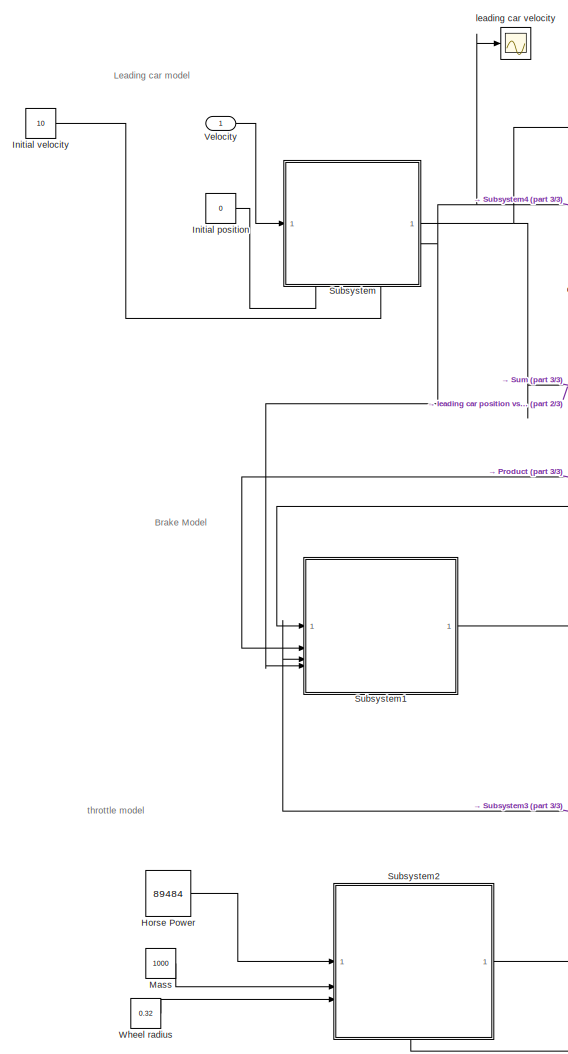
[diagram: root canvas - part 1/3, left side, full height]
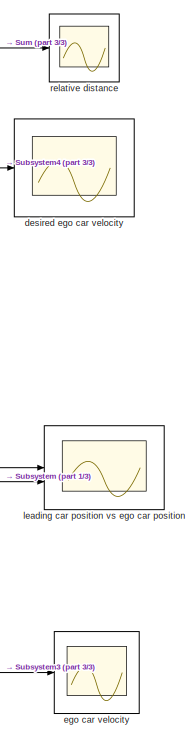
[diagram: root canvas - part 2/3, middle right region]
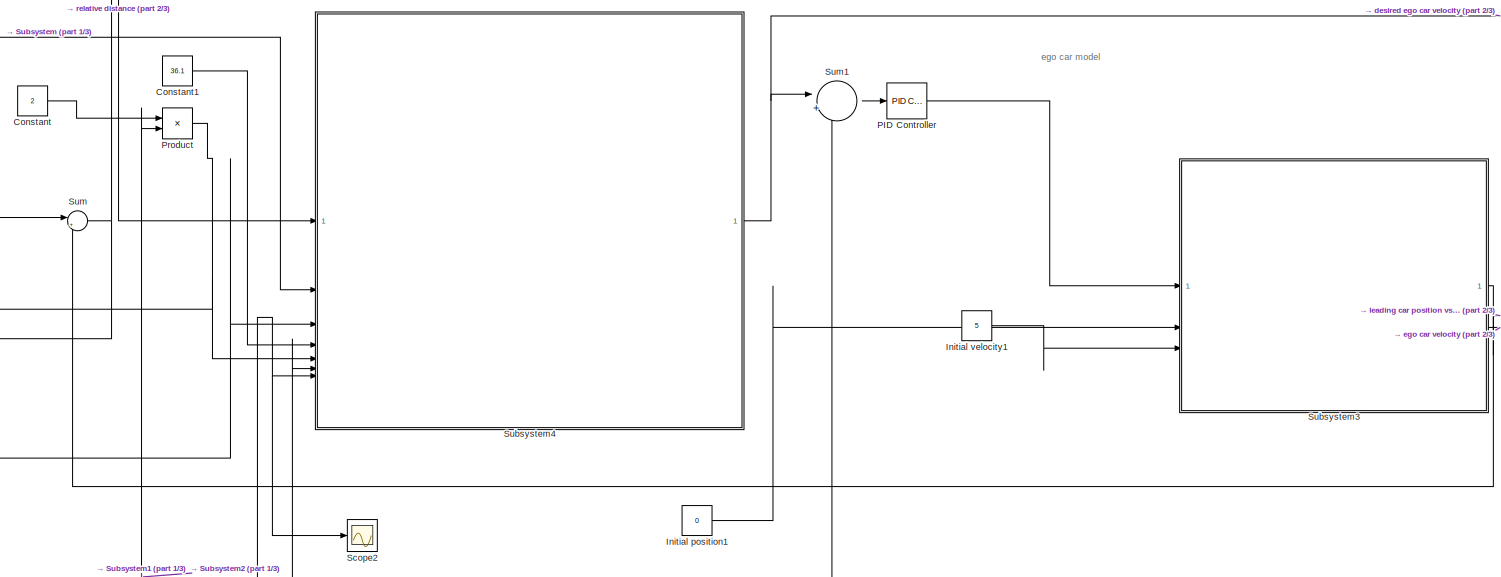
[diagram: root canvas - part 3/3, central region]
MODEL slx_e162d9dc0a43
KIND model
CONFIG AbsTol = auto
CONFIG EnableMultiTasking = off
CONFIG FixedStep = auto
CONFIG MaxStep = auto
CONFIG MinStep = auto
CONFIG RelTol = 1e-3
CONFIG SampleTimeConstraint = Unconstrained
CONFIG SolverName = VariableStepAuto
CONFIG StartTime = 0.0
CONFIG StopTime = 10.0
BLOCK [Constant] Constant
  Value = 2
BLOCK [Constant] Constant1
  Value = 36.1
BLOCK [Constant] Horse Power
  Value = 89484
BLOCK [Constant] Initial position
  Value = 0
BLOCK [Constant] Initial position1
  Value = 0
BLOCK [Constant] Initial velocity
  Value = 10
BLOCK [Constant] Initial velocity1
  Value = 5
BLOCK [Constant] Mass
  Value = 1000
BLOCK [Reference] PID Controller  REF=slpidlib/PID Controller
  LibrarySourceBlock = simulink/Continuous/PID Controller
  SourceBlock = slpidlib/PID Controller
  SourceType = PID 1dof
BLOCK [Product] Product
BLOCK [Scope] Scope2
  Floating = off
  NumInputPorts = 1
  ScopeSpecificationString = Simulink.scopes.TimeScopeBlockCfg('CurrentConfiguration', extmgr.ConfigurationSet(extmgr.Configuration('Core','General UI',true),extmgr.Configuration('Core','Source UI',true),extmgr.Configuration('Sources','WiredSimulink',true,'DataLoggingVariableName','ScopeData3'),extmgr.Configuration('Visuals','Time Domain',true,'SerializedDisplays',{struct('MinYLimReal','4.99639','MaxYLimReal','5.0023','YLabel...<+1454ch>
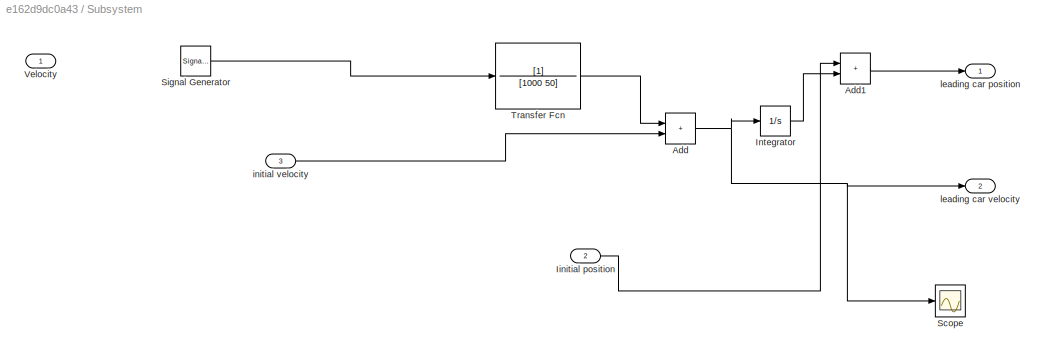
BLOCK [SubSystem] Subsystem
  PortSchema = {"entries":[{"content":{"sides":[{"content":{"connectorIds":["In1"]},"type":"ConnectorPlacement.EquallySpacedRectSide","uuid":"88e62f58-abb7-424e-bece-cb0affe26b20"},{"content":{"connectorIds":["Out1","Out2"],"side":"RIGHT"},"type":"ConnectorPlacement.EquallySpacedRectSide","uuid":"86853464-5600-4523-8146-b34d4afbe922"},{"content":{"side":"TOP"},"type":"ConnectorPlacement.EquallySpacedRectSide","u...<+384ch>
BLOCK [Sum] Subsystem/Add
  IconShape = rectangular
BLOCK [Sum] Subsystem/Add1
  IconShape = rectangular
BLOCK [Inport] Subsystem/Iinitial position
  Port = 2
BLOCK [Integrator] Subsystem/Integrator
BLOCK [Scope] Subsystem/Scope
  Floating = off
  NumInputPorts = 1
  ScopeSpecificationString = Simulink.scopes.TimeScopeBlockCfg('CurrentConfiguration', extmgr.ConfigurationSet(extmgr.Configuration('Core','General UI',true),extmgr.Configuration('Core','Source UI',true),extmgr.Configuration('Sources','WiredSimulink',true,'DataLoggingVariableName','ScopeData1'),extmgr.Configuration('Visuals','Time Domain',true,'SerializedDisplays',{struct('MinYLimReal','7.99947','MaxYLimReal','8.00212','YLabe...<+1449ch>
BLOCK [SignalGenerator] Subsystem/Signal Generator
  Units = rad/sec
BLOCK [TransferFcn] Subsystem/Transfer Fcn
  Denominator = [1000 50]
BLOCK [Inport] Subsystem/Velocity
BLOCK [Inport] Subsystem/initial velocity
  Port = 3
BLOCK [Outport] Subsystem/leading car position
BLOCK [Outport] Subsystem/leading car velocity
  Port = 2
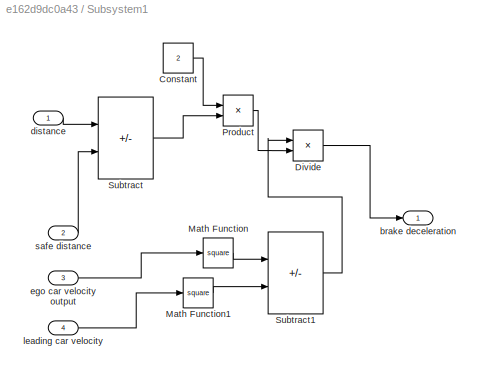
BLOCK [SubSystem] Subsystem1
BLOCK [Constant] Subsystem1/Constant
  Value = 2
BLOCK [Product] Subsystem1/Divide
  Inputs = */
BLOCK [Math] Subsystem1/Math Function
  Operator = square
BLOCK [Math] Subsystem1/Math Function1
  Operator = square
BLOCK [Product] Subsystem1/Product
BLOCK [Sum] Subsystem1/Subtract
  IconShape = rectangular
  Inputs = +-
BLOCK [Sum] Subsystem1/Subtract1
  IconShape = rectangular
  Inputs = +-
BLOCK [Outport] Subsystem1/brake deceleration
BLOCK [Inport] Subsystem1/distance
BLOCK [Inport] Subsystem1/ego car velocity output
  Port = 3
BLOCK [Inport] Subsystem1/leading car velocity
  Port = 4
BLOCK [Inport] Subsystem1/safe distance
  Port = 2
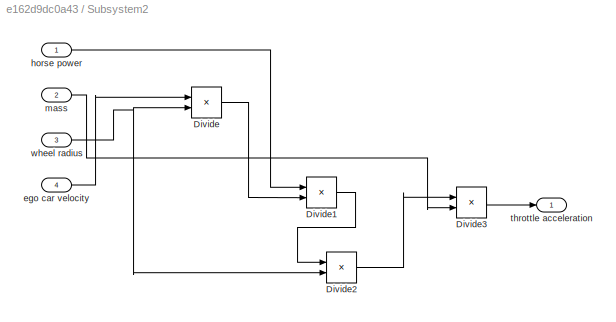
BLOCK [SubSystem] Subsystem2
  PortSchema = {"entries":[{"content":{"sides":[{"content":{"connectorIds":["In1","In2","In3"]},"type":"ConnectorPlacement.EquallySpacedRectSide","uuid":"6f7fc6ef-cf55-43d9-98d6-98847b3edffa"},{"content":{"connectorIds":["Out1"],"side":"RIGHT"},"type":"ConnectorPlacement.EquallySpacedRectSide","uuid":"51f9bcc9-e8b5-40a1-8c1e-180b9cd97441"},{"content":{"side":"TOP"},"type":"ConnectorPlacement.EquallySpacedRectSid...<+383ch>
BLOCK [Product] Subsystem2/Divide
  Inputs = //
BLOCK [Product] Subsystem2/Divide1
  Inputs = //
BLOCK [Product] Subsystem2/Divide2
  Inputs = //
BLOCK [Product] Subsystem2/Divide3
  Inputs = //
BLOCK [Inport] Subsystem2/ego car velocity
  Port = 4
BLOCK [Inport] Subsystem2/horse power
BLOCK [Inport] Subsystem2/mass
  Port = 2
BLOCK [Outport] Subsystem2/throttle acceleration
BLOCK [Inport] Subsystem2/wheel radius
  Port = 3
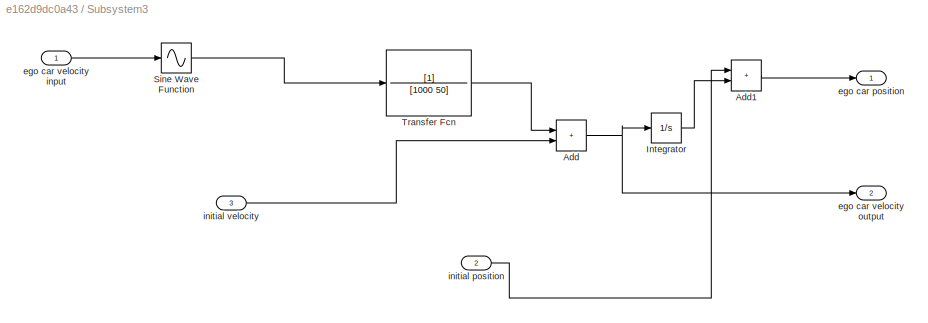
BLOCK [SubSystem] Subsystem3
BLOCK [Sum] Subsystem3/Add
  IconShape = rectangular
BLOCK [Sum] Subsystem3/Add1
  IconShape = rectangular
BLOCK [Integrator] Subsystem3/Integrator
BLOCK [Sin] Subsystem3/Sine Wave Function
  SampleTime = 0
  TimeSource = Use external signal
BLOCK [TransferFcn] Subsystem3/Transfer Fcn
  Denominator = [1000 50]
BLOCK [Outport] Subsystem3/ego car position
BLOCK [Inport] Subsystem3/ego car velocity input
BLOCK [Outport] Subsystem3/ego car velocity output
  Port = 2
BLOCK [Inport] Subsystem3/initial position
  Port = 2
BLOCK [Inport] Subsystem3/initial velocity
  Port = 3
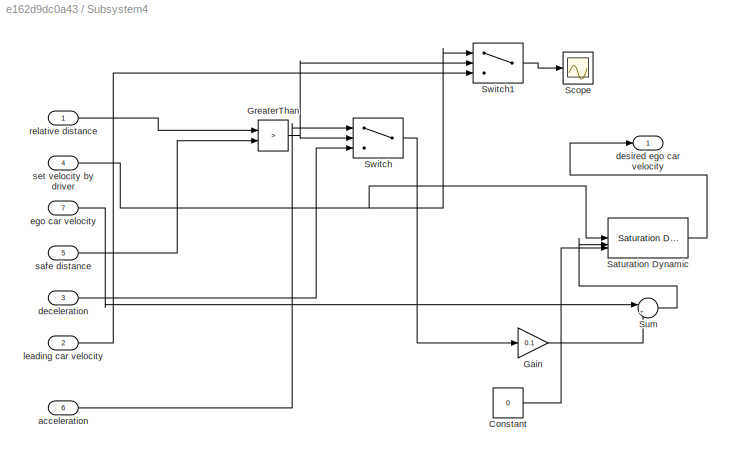
BLOCK [SubSystem] Subsystem4
BLOCK [Inport] Subsystem4/ acceleration
  Port = 6
BLOCK [Inport] Subsystem4/ deceleration
  Port = 3
BLOCK [Constant] Subsystem4/Constant
  Value = 0
BLOCK [Gain] Subsystem4/Gain
  Gain = 0.1
BLOCK [RelationalOperator] Subsystem4/GreaterThan
  InputSameDT = off
  Operator = >
  OutDataTypeStr = boolean
  RndMeth = Simplest
BLOCK [Reference] Subsystem4/Saturation Dynamic  REF=simulink/Discontinuities/Saturation
Dynamic
  SourceBlock = simulink/Discontinuities/Saturation\nDynamic
  SourceType = Saturation Dynamic
BLOCK [Scope] Subsystem4/Scope
  Floating = off
  NumInputPorts = 1
  ScopeSpecificationString = Simulink.scopes.TimeScopeBlockCfg('CurrentConfiguration', extmgr.ConfigurationSet(extmgr.Configuration('Core','General UI',true),extmgr.Configuration('Core','Source UI',true),extmgr.Configuration('Sources','WiredSimulink',true),extmgr.Configuration('Visuals','Time Domain',true),extmgr.Configuration('Tools','Plot Navigation',true),extmgr.Configuration('Tools','Measurements',true)),'Version','2024b'...<+1ch>
BLOCK [Sum] Subsystem4/Sum
  Inputs = |++
BLOCK [Switch] Subsystem4/Switch
  Criteria = u2 > Threshold
  InputSameDT = off
  SaturateOnIntegerOverflow = off
BLOCK [Switch] Subsystem4/Switch1
  Criteria = u2 > Threshold
  InputSameDT = off
  SaturateOnIntegerOverflow = off
BLOCK [Outport] Subsystem4/desired ego car velocity
BLOCK [Inport] Subsystem4/ego car velocity
  Port = 7
BLOCK [Inport] Subsystem4/leading car velocity
  Port = 2
BLOCK [Inport] Subsystem4/relative distance
BLOCK [Inport] Subsystem4/safe distance
  Port = 5
BLOCK [Inport] Subsystem4/set velocity by driver
  Port = 4
BLOCK [Sum] Sum
  Inputs = |+-
BLOCK [Sum] Sum1
  Inputs = |+-
BLOCK [Inport] Velocity
BLOCK [Constant] Wheel radius
  Value = 0.32
BLOCK [Scope] desired ego car velocity
  Floating = off
  NumInputPorts = 1
  ScopeSpecificationString = Simulink.scopes.TimeScopeBlockCfg('CurrentConfiguration', extmgr.ConfigurationSet(extmgr.Configuration('Core','General UI',true),extmgr.Configuration('Core','Source UI',true),extmgr.Configuration('Sources','WiredSimulink',true,'DataLoggingVariableName','ScopeData4'),extmgr.Configuration('Visuals','Time Domain',true,'SerializedDisplays',{struct('MinYLimReal','1.1091','MaxYLimReal','39.98788','YLabe...<+1456ch>
BLOCK [Scope] ego car velocity
  Floating = off
  NumInputPorts = 1
  ScopeSpecificationString = Simulink.scopes.TimeScopeBlockCfg('CurrentConfiguration', extmgr.ConfigurationSet(extmgr.Configuration('Core','General UI',true),extmgr.Configuration('Core','Source UI',true),extmgr.Configuration('Sources','WiredSimulink',true,'DataLoggingVariableName','ScopeData5'),extmgr.Configuration('Visuals','Time Domain',true,'SerializedDisplays',{struct('MinYLimReal','4.99464','MaxYLimReal','5.00182','YLabe...<+1491ch>
BLOCK [Scope] leading car position vs ego car position
  Floating = off
  NumInputPorts = 2
  ScopeSpecificationString = Simulink.scopes.TimeScopeBlockCfg('CurrentConfiguration', extmgr.ConfigurationSet(extmgr.Configuration('Core','General UI',true),extmgr.Configuration('Core','Source UI',true),extmgr.Configuration('Sources','WiredSimulink',true,'DataLoggingVariableName','ScopeData6'),extmgr.Configuration('Visuals','Time Domain',true,'SerializedDisplays',{struct('MinYLimReal','-10.00106','MaxYLimReal','90.00956','YL...<+1511ch>
BLOCK [Scope] leading car velocity
  Floating = off
  NumInputPorts = 1
  ScopeSpecificationString = Simulink.scopes.TimeScopeBlockCfg('CurrentConfiguration', extmgr.ConfigurationSet(extmgr.Configuration('Core','General UI',true),extmgr.Configuration('Core','Source UI',true),extmgr.Configuration('Sources','WiredSimulink',true,'DataLoggingVariableName','ScopeData7'),extmgr.Configuration('Visuals','Time Domain',true,'SerializedDisplays',{struct('MinYLimReal','9.99946','MaxYLimReal','10.00212','YLab...<+1494ch>
BLOCK [Scope] relative distance
  Floating = off
  NumInputPorts = 1
  ScopeSpecificationString = Simulink.scopes.TimeScopeBlockCfg('CurrentConfiguration', extmgr.ConfigurationSet(extmgr.Configuration('Core','General UI',true),extmgr.Configuration('Core','Source UI',true),extmgr.Configuration('Sources','WiredSimulink',true,'DataLoggingVariableName','ScopeData2'),extmgr.Configuration('Visuals','Time Domain',true,'SerializedDisplays',{struct('MinYLimReal','-3.75143','MaxYLimReal','33.76287','YLa...<+1488ch>
ANNOTATION (root): Brake Model
ANNOTATION (root): Leading car model
ANNOTATION (root): ego car model
ANNOTATION (root): throttle model
LINE Constant1:1 -> Subsystem4:4
LINE Constant:1 -> Product:1
LINE Horse Power:1 -> Subsystem2:1
LINE Initial position1:1 -> Subsystem3:2
LINE Initial position:1 -> Subsystem:2
LINE Initial velocity1:1 -> Subsystem3:3
LINE Initial velocity:1 -> Subsystem:3
LINE Mass:1 -> Subsystem2:2
LINE PID Controller:1 -> Subsystem3:1
NET Product:1 -> Subsystem1:2, Subsystem4:5
LINE Subsystem/Add1:1 -> Subsystem/leading car position:1
NET Subsystem/Add:1 -> Subsystem/Integrator:1, Subsystem/Scope:1, Subsystem/leading car velocity:1
LINE Subsystem/Iinitial position:1 -> Subsystem/Add1:1
LINE Subsystem/Integrator:1 -> Subsystem/Add1:2
LINE Subsystem/Signal Generator:1 -> Subsystem/Transfer Fcn:1
LINE Subsystem/Transfer Fcn:1 -> Subsystem/Add:1
LINE Subsystem/initial velocity:1 -> Subsystem/Add:2
LINE Subsystem1/Constant:1 -> Subsystem1/Product:1
LINE Subsystem1/Divide:1 -> Subsystem1/brake deceleration:1
LINE Subsystem1/Math Function1:1 -> Subsystem1/Subtract1:2
LINE Subsystem1/Math Function:1 -> Subsystem1/Subtract1:1
LINE Subsystem1/Product:1 -> Subsystem1/Divide:2
LINE Subsystem1/Subtract1:1 -> Subsystem1/Divide:1
LINE Subsystem1/Subtract:1 -> Subsystem1/Product:2
LINE Subsystem1/distance:1 -> Subsystem1/Subtract:1
LINE Subsystem1/ego car velocity output:1 -> Subsystem1/Math Function:1
LINE Subsystem1/leading car velocity:1 -> Subsystem1/Math Function1:1
LINE Subsystem1/safe distance:1 -> Subsystem1/Subtract:2
LINE Subsystem1:1 -> Subsystem4:3
LINE Subsystem2/Divide1:1 -> Subsystem2/Divide2:1
LINE Subsystem2/Divide2:1 -> Subsystem2/Divide3:1
LINE Subsystem2/Divide3:1 -> Subsystem2/throttle acceleration:1
LINE Subsystem2/Divide:1 -> Subsystem2/Divide1:2
LINE Subsystem2/ego car velocity:1 -> Subsystem2/Divide:1
LINE Subsystem2/horse power:1 -> Subsystem2/Divide1:1
LINE Subsystem2/mass:1 -> Subsystem2/Divide3:2
NET Subsystem2/wheel radius:1 -> Subsystem2/Divide2:2, Subsystem2/Divide:2
LINE Subsystem2:1 -> Subsystem4:6
LINE Subsystem3/Add1:1 -> Subsystem3/ego car position:1
NET Subsystem3/Add:1 -> Subsystem3/Integrator:1, Subsystem3/ego car velocity output:1
LINE Subsystem3/Integrator:1 -> Subsystem3/Add1:2
LINE Subsystem3/Sine Wave Function:1 -> Subsystem3/Transfer Fcn:1
LINE Subsystem3/Transfer Fcn:1 -> Subsystem3/Add:1
LINE Subsystem3/ego car velocity input:1 -> Subsystem3/Sine Wave Function:1
LINE Subsystem3/initial position:1 -> Subsystem3/Add1:1
LINE Subsystem3/initial velocity:1 -> Subsystem3/Add:2
NET Subsystem3:1 -> Sum:2, leading car position vs ego car position:1
NET Subsystem3:2 -> Product:2, Scope2:1, Subsystem1:3, Subsystem2:4, Subsystem4:7, Sum1:2, ego car velocity:1
LINE Subsystem4/ acceleration:1 -> Subsystem4/Switch:1
LINE Subsystem4/ deceleration:1 -> Subsystem4/Switch:3
LINE Subsystem4/Constant:1 -> Subsystem4/Saturation Dynamic:3
LINE Subsystem4/Gain:1 -> Subsystem4/Sum:2
NET Subsystem4/GreaterThan:1 -> Subsystem4/Switch1:2, Subsystem4/Switch:2
LINE Subsystem4/Saturation Dynamic:1 -> Subsystem4/desired ego car velocity:1
LINE Subsystem4/Sum:1 -> Subsystem4/Saturation Dynamic:2
LINE Subsystem4/Switch1:1 -> Subsystem4/Scope:1
LINE Subsystem4/Switch:1 -> Subsystem4/Gain:1
LINE Subsystem4/ego car velocity:1 -> Subsystem4/Sum:1
LINE Subsystem4/leading car velocity:1 -> Subsystem4/Switch1:3
LINE Subsystem4/relative distance:1 -> Subsystem4/GreaterThan:1
LINE Subsystem4/safe distance:1 -> Subsystem4/GreaterThan:2
NET Subsystem4/set velocity by driver:1 -> Subsystem4/Saturation Dynamic:1, Subsystem4/Switch1:1
NET Subsystem4:1 -> Sum1:1, desired ego car velocity:1
NET Subsystem:1 -> Sum:1, leading car position vs ego car position:2
NET Subsystem:2 -> Subsystem1:4, Subsystem4:2, leading car velocity:1
LINE Sum1:1 -> PID Controller:1
NET Sum:1 -> Subsystem1:1, Subsystem4:1, relative distance:1
LINE Velocity:1 -> Subsystem:1
LINE Wheel radius:1 -> Subsystem2:3
note: NET lines group one-source signal fan-out (src -> all destinations, sorted); 1:1 wires keep LINE
